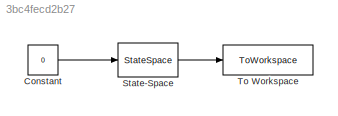
MODEL slx_3bc4fecd2b27
KIND model
CONFIG AbsTol = auto
CONFIG EnableMultiTasking = off
CONFIG FixedStep = auto
CONFIG MaxStep = auto
CONFIG MinStep = auto
CONFIG RelTol = 1e-3
CONFIG SampleTimeConstraint = Unconstrained
CONFIG SolverName = VariableStepAuto
CONFIG StartTime = 0.0
CONFIG StopTime = 10.0
BLOCK [Constant] Constant
  Value = 0
BLOCK [StateSpace] State-Space
  A = A
  B = [0;0]
  C = [1,0;0,1]
  D = [0;0]
  InitialCondition = x0
BLOCK [ToWorkspace] To Workspace
  MaxDataPoints = inf
  SampleTime = -1
  VariableName = x
LINE Constant:1 -> State-Space:1
LINE State-Space:1 -> To Workspace:1
